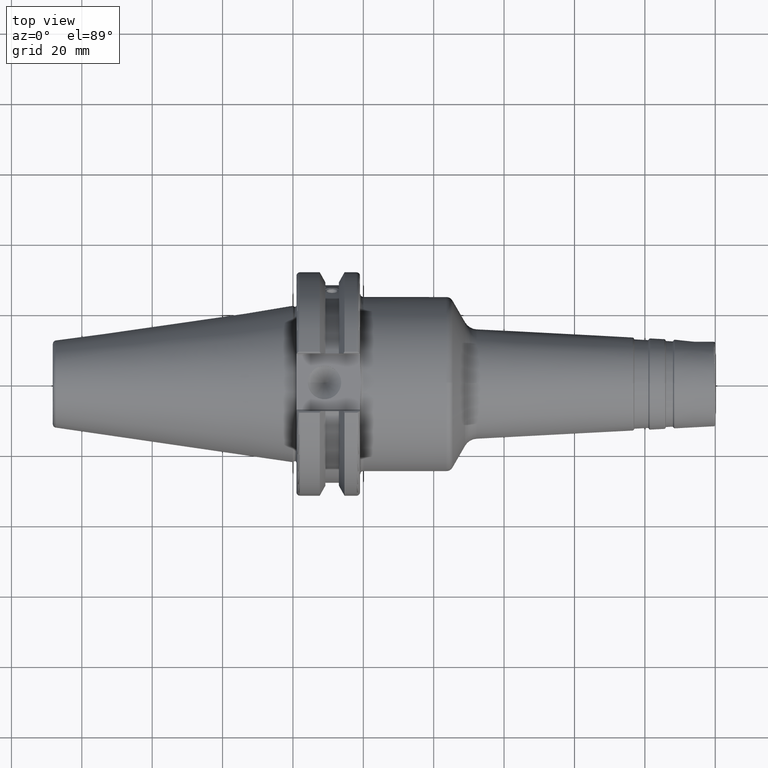
[diagram: clean part render]
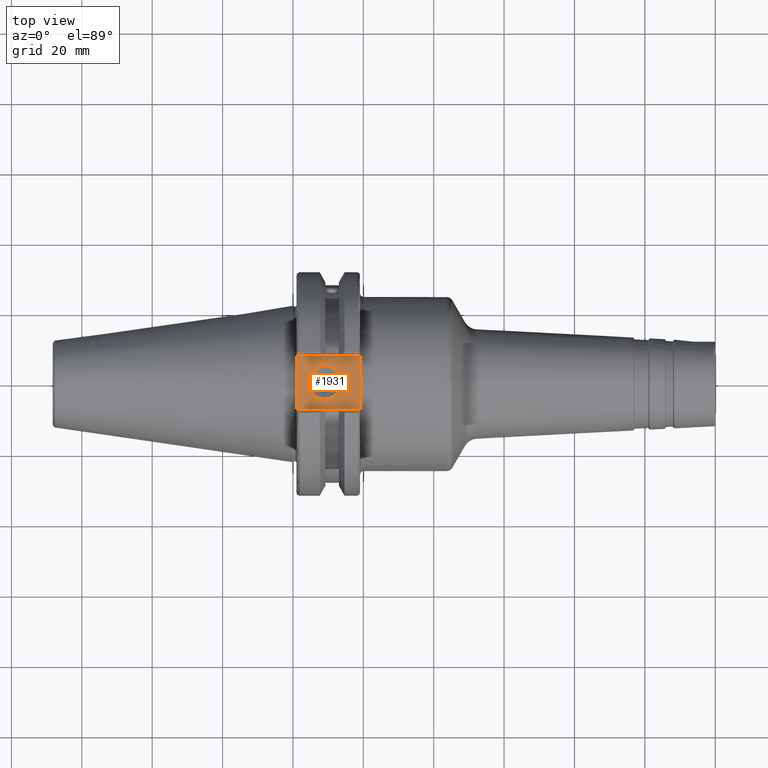
[diagram: same view with one face highlighted and labeled with its STEP entity id]
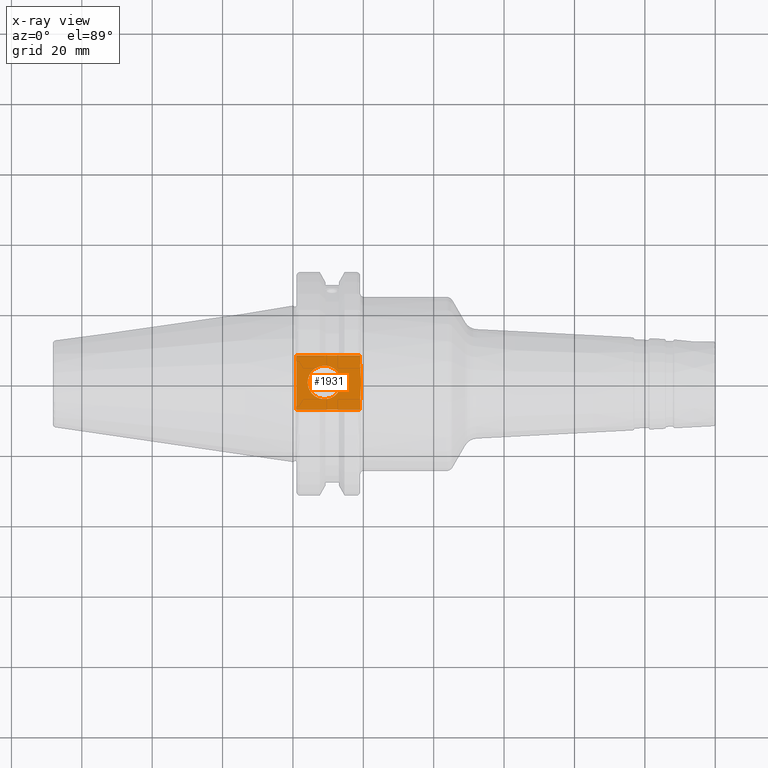
[diagram: x-ray of the same camera — body ghosted, the highlighted face saturated]
A machine part, top view. The second image highlights one B-rep face of the part: STEP entity #1931.
The next image is the same camera in x-ray: the body ghosted, the highlighted face saturated — about 0% of this face is hidden behind the body in this view.
In plain terms, the highlighted planar face has unit normal (0, 0, 1).
Its self-contained STEP definition (entity closure, byte-faithful):
#83=PLANE('',#2202);
#116=FACE_BOUND('',#407,.T.);
#123=B_SPLINE_CURVE_WITH_KNOTS('',3,(#3075,#3076,#3077,#3078,#3079,#3080,
#3081,#3082,#3083,#3084),.UNSPECIFIED.,.F.,.F.,(4,2,2,2,4),(1.28229186042809,
1.47392183654147,1.862003561099,2.25008528565653,2.44171526176991),
 .UNSPECIFIED.);
#286=FACE_OUTER_BOUND('',#406,.T.);
#406=EDGE_LOOP('',(#1785,#1786,#1787,#1788,#1789,#1790));
#407=EDGE_LOOP('',(#1791));
#431=LINE('',#3111,#529);
#438=LINE('',#3128,#536);
#472=LINE('',#3504,#570);
#497=LINE('',#3725,#595);
#499=LINE('',#3728,#597);
#529=VECTOR('',#2425,10.);
#536=VECTOR('',#2438,10.);
#570=VECTOR('',#2642,10.);
#595=VECTOR('',#2725,10.);
#597=VECTOR('',#2729,10.);
#725=CIRCLE('',#2187,4.7625);
#794=VERTEX_POINT('',#3073);
#795=VERTEX_POINT('',#3074);
#798=VERTEX_POINT('',#3110);
#805=VERTEX_POINT('',#3126);
#881=VERTEX_POINT('',#3501);
#882=VERTEX_POINT('',#3503);
#924=VERTEX_POINT('',#3758);
#1015=EDGE_CURVE('',#794,#795,#123,.F.);
#1020=EDGE_CURVE('',#794,#798,#431,.T.);
#1029=EDGE_CURVE('',#805,#795,#438,.T.);
#1134=EDGE_CURVE('',#881,#882,#472,.T.);
#1193=EDGE_CURVE('',#798,#881,#497,.T.);
#1195=EDGE_CURVE('',#882,#805,#499,.T.);
#1207=EDGE_CURVE('',#924,#924,#725,.T.);
#1785=ORIENTED_EDGE('',*,*,#1193,.F.);
#1786=ORIENTED_EDGE('',*,*,#1020,.F.);
#1787=ORIENTED_EDGE('',*,*,#1015,.T.);
#1788=ORIENTED_EDGE('',*,*,#1029,.F.);
#1789=ORIENTED_EDGE('',*,*,#1195,.F.);
#1790=ORIENTED_EDGE('',*,*,#1134,.F.);
#1791=ORIENTED_EDGE('',*,*,#1207,.T.);
#1931=ADVANCED_FACE('',(#286,#116),#83,.T.);
#2187=AXIS2_PLACEMENT_3D('',#3759,#2761,#2762);
#2202=AXIS2_PLACEMENT_3D('',#3775,#2792,#2793);
#2425=DIRECTION('',(0.,-1.,0.));
#2438=DIRECTION('',(0.,-1.,0.));
#2642=DIRECTION('',(0.,1.,0.));
#2725=DIRECTION('',(-1.,1.16558847729675E-16,0.));
#2729=DIRECTION('',(1.,0.,0.));
#2761=DIRECTION('center_axis',(0.,0.,-1.));
#2762=DIRECTION('ref_axis',(1.,0.,0.));
#2792=DIRECTION('center_axis',(0.,0.,1.));
#2793=DIRECTION('ref_axis',(1.,0.,0.));
#3073=CARTESIAN_POINT('',(19.05,-6.16948133962654,25.));
#3074=CARTESIAN_POINT('',(19.05,6.16948133962654,25.));
#3075=CARTESIAN_POINT('Ctrl Pts',(19.05,6.16948133962654,25.));
#3076=CARTESIAN_POINT('Ctrl Pts',(19.05,5.53071475258195,25.));
#3077=CARTESIAN_POINT('Ctrl Pts',(19.0917093675371,4.76533047486056,25.));
#3078=CARTESIAN_POINT('Ctrl Pts',(19.2334466867335,2.83816328553263,25.));
#3079=CARTESIAN_POINT('Ctrl Pts',(19.3885621722339,1.29360574852511,25.));
#3080=CARTESIAN_POINT('Ctrl Pts',(19.3885621722339,-1.29360574852511,25.));
#3081=CARTESIAN_POINT('Ctrl Pts',(19.2334466867335,-2.83816328553263,25.));
#3082=CARTESIAN_POINT('Ctrl Pts',(19.0917093675371,-4.76533047486056,25.));
#3083=CARTESIAN_POINT('Ctrl Pts',(19.05,-5.53071475258195,25.));
#3084=CARTESIAN_POINT('Ctrl Pts',(19.05,-6.16948133962654,25.));
#3110=CARTESIAN_POINT('',(19.05,-7.69,25.));
#3111=CARTESIAN_POINT('',(19.05,0.,25.));
#3126=CARTESIAN_POINT('',(19.05,7.69,25.));
#3128=CARTESIAN_POINT('',(19.05,0.,25.));
#3501=CARTESIAN_POINT('',(0.999999999999999,-7.68999999999999,25.));
#3503=CARTESIAN_POINT('',(0.999999999999999,7.69,25.));
#3504=CARTESIAN_POINT('',(0.999999999999999,15.875,25.));
#3725=CARTESIAN_POINT('',(7.81,-7.69,25.));
#3728=CARTESIAN_POINT('',(17.335,7.69,25.));
#3758=CARTESIAN_POINT('',(4.1966,-5.83238038093927E-16,25.));
#3759=CARTESIAN_POINT('Origin',(8.9591,0.,25.));
#3775=CARTESIAN_POINT('Origin',(14.62,0.,25.));